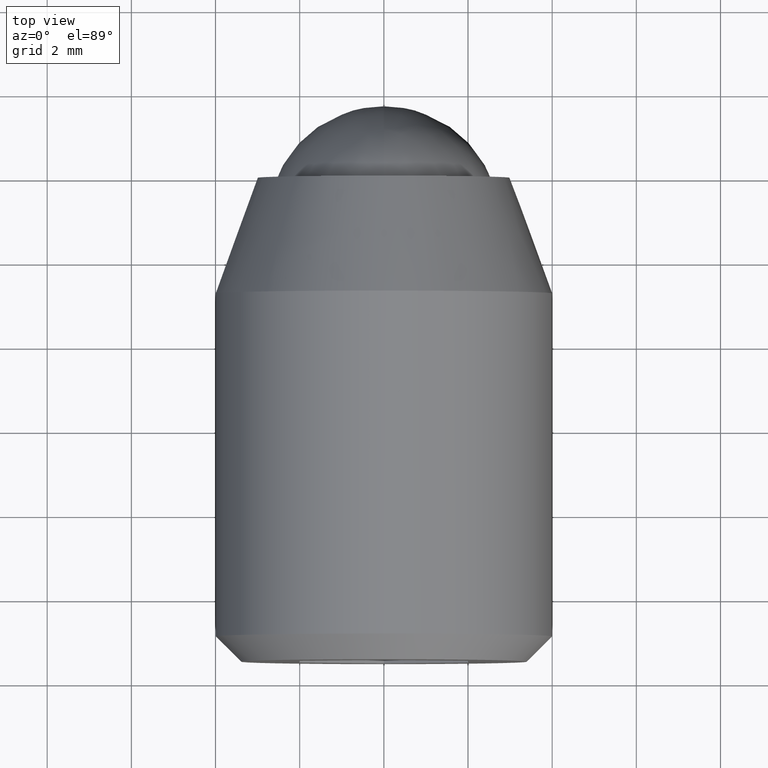
[diagram: clean part render]
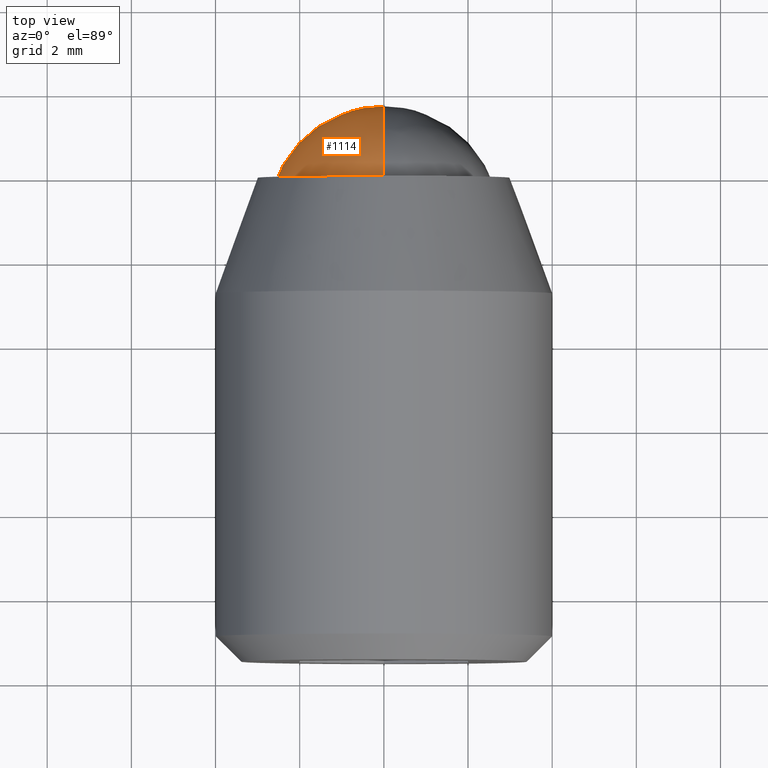
[diagram: same view with one face highlighted and labeled with its STEP entity id]
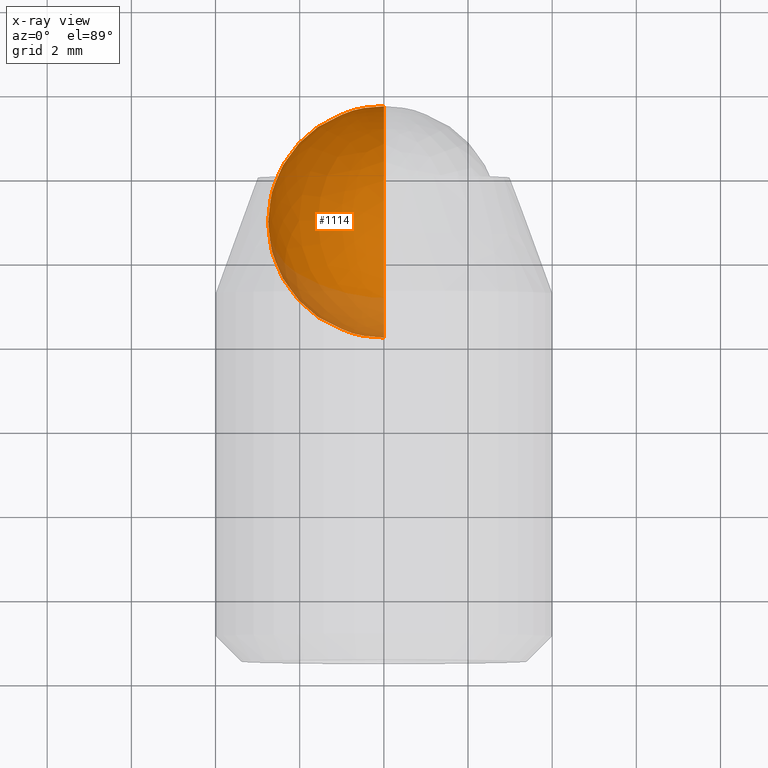
[diagram: x-ray of the same camera — body ghosted, the highlighted face saturated]
A machine part, top view. The second image highlights one B-rep face of the part: STEP entity #1114.
The next image is the same camera in x-ray: the body ghosted, the highlighted face saturated — about 17% of this face is hidden behind the body in this view.
In plain terms, the highlighted face is a freeform B-spline surface patch.
Its self-contained STEP definition (entity closure, byte-faithful):
#1029=CARTESIAN_POINT('',(0.0,1.699999999999974,6.092417E-016));
#1030=VERTEX_POINT('',#1029);
#1031=CARTESIAN_POINT('',(0.0,-3.800000000000026,6.092417E-016));
#1032=VERTEX_POINT('',#1031);
#1033=CARTESIAN_POINT('',(0.0,1.699999999999974,6.092417E-016));
#1034=CARTESIAN_POINT('',(0.0,1.699999999999973,2.750000000000000));
#1035=CARTESIAN_POINT('',(0.0,-1.050000000000026,2.750000000000000));
#1036=CARTESIAN_POINT('',(0.0,-3.800000000000026,2.750000000000000));
#1037=CARTESIAN_POINT('',(0.0,-3.800000000000026,6.092417E-016));
#1045=(BOUNDED_CURVE()B_SPLINE_CURVE(2,(#1033,#1034,#1035,#1036,#1037),.UNSPECIFIED.,.F.,.U.)B_SPLINE_CURVE_WITH_KNOTS((3,2,3),(0.0,0.500000000000000,1.0),.UNSPECIFIED.)CURVE()GEOMETRIC_REPRESENTATION_ITEM()RATIONAL_B_SPLINE_CURVE((1.0,0.707106781186548,1.0,0.707106781186548,1.0))REPRESENTATION_ITEM(''));
#1046=EDGE_CURVE('',#1030,#1032,#1045,.T.);
#1048=CARTESIAN_POINT('',(0.0,1.699999999999974,6.092417E-016));
#1049=CARTESIAN_POINT('',(0.0,1.699999999999973,-2.749999999999999));
#1050=CARTESIAN_POINT('',(0.0,-1.050000000000026,-2.750000000000000));
#1051=CARTESIAN_POINT('',(0.0,-3.800000000000026,-2.749999999999999));
#1052=CARTESIAN_POINT('',(0.0,-3.800000000000026,6.092417E-016));
#1060=(BOUNDED_CURVE()B_SPLINE_CURVE(2,(#1048,#1049,#1050,#1051,#1052),.UNSPECIFIED.,.F.,.U.)B_SPLINE_CURVE_WITH_KNOTS((3,2,3),(0.0,0.500000000000000,1.0),.UNSPECIFIED.)CURVE()GEOMETRIC_REPRESENTATION_ITEM()RATIONAL_B_SPLINE_CURVE((1.0,0.707106781186548,1.0,0.707106781186548,1.0))REPRESENTATION_ITEM(''));
#1061=EDGE_CURVE('',#1030,#1032,#1060,.T.);
#1066=CARTESIAN_POINT('',(1.031250000000000,-2.852640207792473,1.802640207792448));
#1067=CARTESIAN_POINT('',(0.674528301886792,-2.682579810830922,2.176773081107862));
#1068=CARTESIAN_POINT('',(0.130952380952381,-1.736720079159054,2.746880316636111));
#1069=CARTESIAN_POINT('',(0.130952380952381,-0.363279920840998,2.746880316636111));
#1070=CARTESIAN_POINT('',(0.674528301886792,0.582579810830870,2.176773081107862));
#1071=CARTESIAN_POINT('',(1.031250000000000,0.752640207792422,1.802640207792448));
#1072=CARTESIAN_POINT('',(0.674528301886792,-3.226773081107888,1.632579810830897));
#1073=CARTESIAN_POINT('',(0.130952380952381,-3.110160237477109,2.060160237477083));
#1074=CARTESIAN_POINT('',(-0.798387096774193,-1.980394945957418,2.791184837872177));
#1075=CARTESIAN_POINT('',(-0.798387096774193,-0.119605054042634,2.791184837872177));
#1076=CARTESIAN_POINT('',(0.130952380952381,1.010160237477057,2.060160237477083));
#1077=CARTESIAN_POINT('',(0.674528301886792,1.126773081107835,1.632579810830897));
#1078=CARTESIAN_POINT('',(0.130952380952381,-3.796880316636136,0.686720079159028));
#1079=CARTESIAN_POINT('',(-0.798387096774193,-3.841184837872203,0.930394945957393));
#1080=CARTESIAN_POINT('',(-2.749999999999999,-2.492112166233984,1.442112166233959));
#1081=CARTESIAN_POINT('',(-2.749999999999999,0.392112166233932,1.442112166233959));
#1082=CARTESIAN_POINT('',(-0.798387096774193,1.741184837872151,0.930394945957393));
#1083=CARTESIAN_POINT('',(0.130952380952381,1.696880316636084,0.686720079159028));
#1084=CARTESIAN_POINT('',(0.130952380952381,-3.796880316636136,-0.686720079159027));
#1085=CARTESIAN_POINT('',(-0.798387096774193,-3.841184837872203,-0.930394945957392));
#1086=CARTESIAN_POINT('',(-2.749999999999999,-2.492112166233984,-1.442112166233957));
#1087=CARTESIAN_POINT('',(-2.749999999999999,0.392112166233932,-1.442112166233957));
#1088=CARTESIAN_POINT('',(-0.798387096774193,1.741184837872151,-0.930394945957392));
#1089=CARTESIAN_POINT('',(0.130952380952381,1.696880316636084,-0.686720079159027));
#1090=CARTESIAN_POINT('',(0.674528301886792,-3.226773081107888,-1.632579810830895));
#1091=CARTESIAN_POINT('',(0.130952380952381,-3.110160237477109,-2.060160237477082));
#1092=CARTESIAN_POINT('',(-0.798387096774193,-1.980394945957418,-2.791184837872177));
#1093=CARTESIAN_POINT('',(-0.798387096774193,-0.119605054042634,-2.791184837872177));
#1094=CARTESIAN_POINT('',(0.130952380952381,1.010160237477057,-2.060160237477082));
#1095=CARTESIAN_POINT('',(0.674528301886792,1.126773081107835,-1.632579810830895));
#1096=CARTESIAN_POINT('',(1.031250000000000,-2.852640207792473,-1.802640207792447));
#1097=CARTESIAN_POINT('',(0.674528301886792,-2.682579810830922,-2.176773081107861));
#1098=CARTESIAN_POINT('',(0.130952380952381,-1.736720079159054,-2.746880316636110));
#1099=CARTESIAN_POINT('',(0.130952380952381,-0.363279920840998,-2.746880316636110));
#1100=CARTESIAN_POINT('',(0.674528301886792,0.582579810830870,-2.176773081107861));
#1101=CARTESIAN_POINT('',(1.031250000000000,0.752640207792422,-1.802640207792447));
#1109=(BOUNDED_SURFACE()B_SPLINE_SURFACE(2,2,((#1066,#1072,#1078,#1084,#1090,#1096),(#1067,#1073,#1079,#1085,#1091,#1097),(#1068,#1074,#1080,#1086,#1092,#1098),(#1069,#1075,#1081,#1087,#1093,#1099),(#1070,#1076,#1082,#1088,#1094,#1100),(#1071,#1077,#1083,#1089,#1095,#1101)),.UNSPECIFIED.,.F.,.F.,.U.)B_SPLINE_SURFACE_WITH_KNOTS((3,1,1,1,3),(3,1,1,1,3),(0.0,2.535581830741026,5.071163661482052,7.606745492223078,10.142327322964100),(0.0,2.535581830741025,5.071163661482050,7.606745492223075,10.142327322964100),.UNSPECIFIED.)GEOMETRIC_REPRESENTATION_ITEM()RATIONAL_B_SPLINE_SURFACE(((3.200000000000000,2.650000000000000,2.100000000000000,2.100000000000000,2.650000000000000,3.200000000000000),(2.650000000000000,2.100000000000000,1.550000000000000,1.550000000000000,2.100000000000000,2.650000000000000),(2.100000000000000,1.550000000000000,1.0,1.0,1.550000000000000,2.100000000000000),(2.100000000000000,1.550000000000000,1.0,1.0,1.550000000000000,2.100000000000000),(2.650000000000000,2.100000000000000,1.550000000000000,1.550000000000000,2.100000000000000,2.650000000000000),(3.200000000000000,2.650000000000000,2.100000000000000,2.100000000000000,2.650000000000000,3.200000000000000)))REPRESENTATION_ITEM('')SURFACE());
#1110=ORIENTED_EDGE('',*,*,#1061,.T.);
#1111=ORIENTED_EDGE('',*,*,#1046,.F.);
#1112=EDGE_LOOP('',(#1110,#1111));
#1113=FACE_OUTER_BOUND('',#1112,.T.);
#1114=ADVANCED_FACE('',(#1113),#1109,.T.);